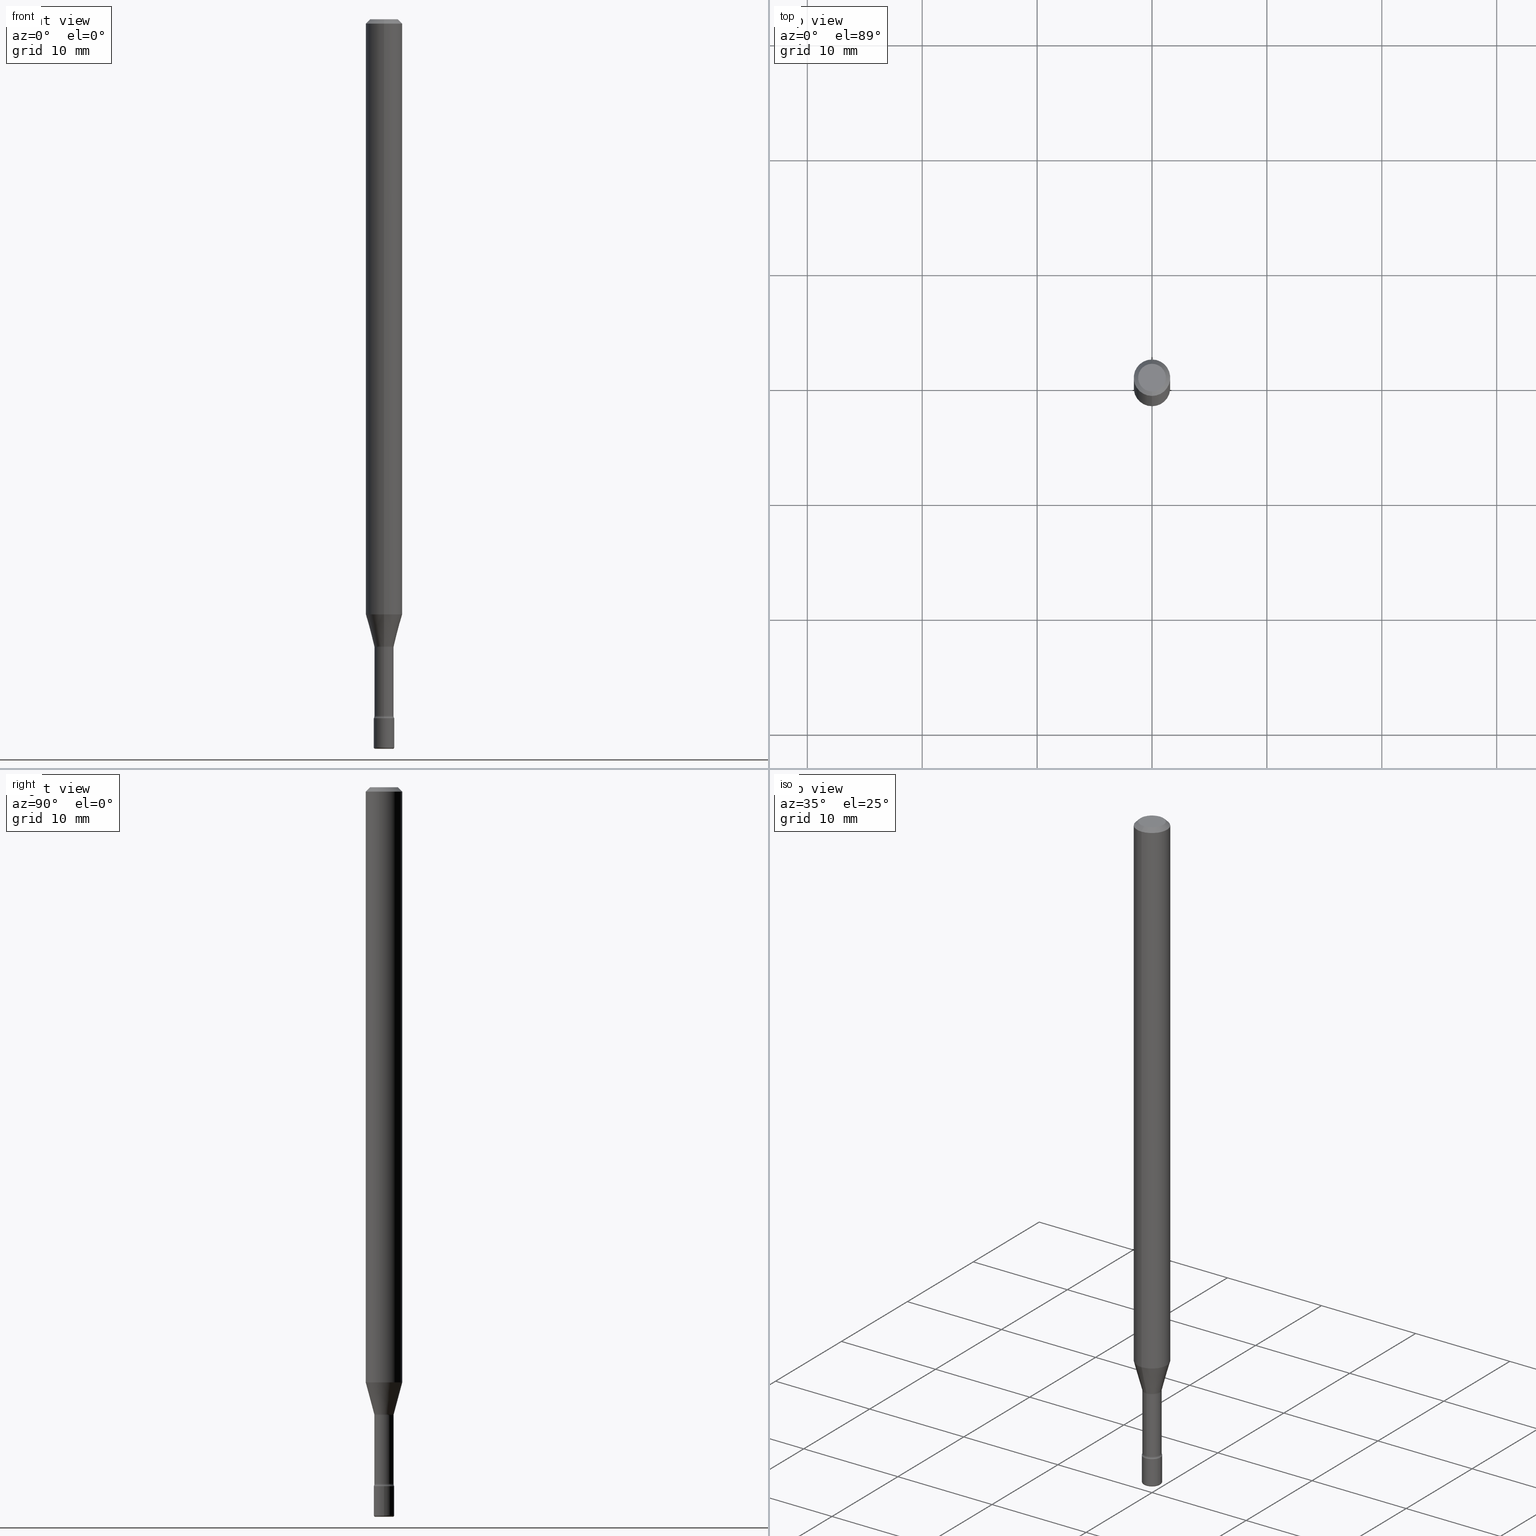
[diagram: canonical four-view strip — front | top / right | iso, engineering-drawing reading convention]
A machine part, canonical four-view strip (front | top / right | iso — engineering-drawing reading convention). The complete STEP part file that produces these views, byte-faithful:
ISO-10303-21;
HEADER;
FILE_DESCRIPTION (( 'STEP AP203' ),
    '1' );
FILE_NAME ('08830.STEP',
    '2024-03-06T20:04:25',
    ( '' ),
    ( '' ),
    'SwSTEP 2.0',
    'SolidWorks 2023',
    '' );
FILE_SCHEMA (( 'CONFIG_CONTROL_DESIGN' ));
ENDSEC;

DATA;
#1 = DIRECTION ( 'NONE',  ( 7.105427357601001859E-15, 1.000000000000000000, 0.000000000000000000 ) ) ;
#2 = EDGE_LOOP ( 'NONE', ( #335, #158, #188, #320 ) ) ;
#3 = EDGE_CURVE ( 'NONE', #153, #285, #262, .T. ) ;
#4 = CC_DESIGN_DATE_AND_TIME_ASSIGNMENT ( #332, #182, ( #105 ) ) ;
#5 = AXIS2_PLACEMENT_3D ( 'NONE', #485, #92, #227 ) ;
#6 = DIRECTION ( 'NONE',  ( 1.000000000000000000, -6.982962677686276966E-15, 0.000000000000000000 ) ) ;
#7 = FACE_OUTER_BOUND ( 'NONE', #101, .T. ) ;
#8 = DIRECTION ( 'NONE',  ( -6.982962677686265133E-15, -1.000000000000000000, 3.491554610375807088E-15 ) ) ;
#9 = AXIS2_PLACEMENT_3D ( 'NONE', #537, #133, #264 ) ;
#10 = CARTESIAN_POINT ( 'NONE',  ( -3.344839122611194574E-16, -0.04790000000000750602, -2.151974787463811101 ) ) ;
#11 = AXIS2_PLACEMENT_3D ( 'NONE', #390, #50, #386 ) ;
#12 = DIRECTION ( 'NONE',  ( -2.445417640947345566E-29, 3.491554610375806299E-15, 1.000000000000000000 ) ) ;
#13 = CARTESIAN_POINT ( 'NONE',  ( 2.412292587906125439E-16, 0.03289999999999167896, -2.387345589506695731 ) ) ;
#14 = ADVANCED_FACE ( 'NONE', ( #166 ), #79, .T. ) ;
#15 = ORIENTED_EDGE ( 'NONE', *, *, #314, .T. ) ;
#16 = APPROVAL ( #450, 'UNSPECIFIED' ) ;
#17 = ORIENTED_EDGE ( 'NONE', *, *, #566, .T. ) ;
#18 = EDGE_LOOP ( 'NONE', ( #75, #287 ) ) ;
#19 = DIRECTION ( 'NONE',  ( 6.982962677686265922E-15, 1.000000000000000000, -3.483106191921935554E-15 ) ) ;
#20 = AXIS2_PLACEMENT_3D ( 'NONE', #134, #399, #6 ) ;
#21 = ORIENTED_EDGE ( 'NONE', *, *, #126, .F. ) ;
#22 = PERSON_AND_ORGANIZATION_ROLE ( 'creator' ) ;
#23 = ORIENTED_EDGE ( 'NONE', *, *, #161, .F. ) ;
#24 = PERSON ( 'UNSPECIFIED', 'UNSPECIFIED', 'UNSPECIFIED', ('UNSPECIFIED'), ('UNSPECIFIED'), ('UNSPECIFIED') ) ;
#25 = CARTESIAN_POINT ( 'NONE',  ( 5.856897790813402508E-29, -8.362097806529333416E-15, -2.395000000000000018 ) ) ;
#26 = COORDINATED_UNIVERSAL_TIME_OFFSET ( 5, 0, .BEHIND. ) ;
#27 = ORIENTED_EDGE ( 'NONE', *, *, #346, .F. ) ;
#28 = CYLINDRICAL_SURFACE ( 'NONE', #86, 0.03500000000000000333 ) ;
#29 = DIRECTION ( 'NONE',  ( -6.982962677686266711E-15, -1.000000000000000000, 0.000000000000000000 ) ) ;
#30 = AXIS2_PLACEMENT_3D ( 'NONE', #302, #351, #475 ) ;
#31 = ADVANCED_FACE ( 'NONE', ( #7 ), #170, .T. ) ;
#32 = CARTESIAN_POINT ( 'NONE',  ( -4.364351673553912750E-16, -0.06250000000000005551, -0.01499999999999981036 ) ) ;
#33 = ORIENTED_EDGE ( 'NONE', *, *, #66, .T. ) ;
#34 = EDGE_CURVE ( 'NONE', #552, #489, #360, .T. ) ;
#35 = PRODUCT ( '08830', '08830', '', ( #554 ) ) ;
#36 = AXIS2_PLACEMENT_3D ( 'NONE', #10, #435, #398 ) ;
#37 = CIRCLE ( 'NONE', #136, 0.03500000000000000333 ) ;
#38 = ORIENTED_EDGE ( 'NONE', *, *, #160, .F. ) ;
#39 = ADVANCED_FACE ( 'NONE', ( #209 ), #69, .F. ) ;
#40 = DATE_AND_TIME ( #306, #241 ) ;
#41 = DIRECTION ( 'NONE',  ( -2.445417640947345847E-29, 3.491554610375806299E-15, 1.000000000000000000 ) ) ;
#42 = DIRECTION ( 'NONE',  ( 1.000000000000000000, -6.982962677686276966E-15, 0.000000000000000000 ) ) ;
#43 = AXIS2_PLACEMENT_3D ( 'NONE', #545, #462, #143 ) ;
#44 = ORIENTED_EDGE ( 'NONE', *, *, #88, .F. ) ;
#45 = CARTESIAN_POINT ( 'NONE',  ( 2.337685600650730011E-16, 0.03290000000000001257, 3.632012522098820413E-16 ) ) ;
#46 = DIRECTION ( 'NONE',  ( -2.445417640947345847E-29, 3.491554610375806299E-15, 1.000000000000000000 ) ) ;
#47 = EDGE_CURVE ( 'NONE', #201, #489, #355, .T. ) ;
#48 = APPROVAL_ROLE ( '' ) ;
#49 = DIRECTION ( 'NONE',  ( -2.445417640947345847E-29, 3.491554610375806299E-15, 1.000000000000000000 ) ) ;
#50 = DIRECTION ( 'NONE',  ( -2.445417640947345847E-29, 3.491554610375806299E-15, 1.000000000000000000 ) ) ;
#51 = APPROVAL_DATE_TIME ( #40, #146 ) ;
#52 = CARTESIAN_POINT ( 'NONE',  ( 5.838179168722291637E-29, -8.335372575132118350E-15, -2.387345589506696175 ) ) ;
#53 = CC_DESIGN_APPROVAL ( #146, ( #252 ) ) ;
#54 = VECTOR ( 'NONE', #59, 39.37007874015749564 ) ;
#55 = AXIS2_PLACEMENT_3D ( 'NONE', #212, #222, #322 ) ;
#56 = DIRECTION ( 'NONE',  ( -2.445468806185136597E-29, 3.491481338843145583E-15, 1.000000000000000000 ) ) ;
#57 = AXIS2_PLACEMENT_3D ( 'NONE', #229, #502, #106 ) ;
#58 = DIRECTION ( 'NONE',  ( -2.445417640947345847E-29, 3.491554610375806299E-15, 1.000000000000000000 ) ) ;
#59 = DIRECTION ( 'NONE',  ( -1.807323732225329350E-15, -0.2588190451025180194, 0.9659258262890689783 ) ) ;
#60 = AXIS2_PLACEMENT_3D ( 'NONE', #248, #156, #347 ) ;
#61 = DIRECTION ( 'NONE',  ( 1.000000000000000000, -6.982962677686265922E-15, 4.876176775795936353E-29 ) ) ;
#62 = SECURITY_CLASSIFICATION_LEVEL ( 'unclassified' ) ;
#63 = DIRECTION ( 'NONE',  ( -2.445468806185136597E-29, 3.491481338843145583E-15, 1.000000000000000000 ) ) ;
#64 = ORIENTED_EDGE ( 'NONE', *, *, #431, .T. ) ;
#65 = DIRECTION ( 'NONE',  ( -2.445417640947345847E-29, 3.491554610375806299E-15, 1.000000000000000000 ) ) ;
#66 = EDGE_CURVE ( 'NONE', #371, #208, #446, .T. ) ;
#67 = FACE_OUTER_BOUND ( 'NONE', #78, .T. ) ;
#68 = ORIENTED_EDGE ( 'NONE', *, *, #126, .T. ) ;
#69 = TOROIDAL_SURFACE ( 'NONE', #542, 0.04790000000000001895, 0.01500000000000000291 ) ;
#70 = FACE_OUTER_BOUND ( 'NONE', #140, .T. ) ;
#71 = AXIS2_PLACEMENT_3D ( 'NONE', #529, #132, #318 ) ;
#72 = APPROVAL_DATE_TIME ( #411, #16 ) ;
#73 = VERTEX_POINT ( 'NONE', #89 ) ;
#74 = APPROVAL_ROLE ( '' ) ;
#75 = ORIENTED_EDGE ( 'NONE', *, *, #164, .T. ) ;
#76 = EDGE_LOOP ( 'NONE', ( #524, #486, #298, #339 ) ) ;
#77 = COORDINATED_UNIVERSAL_TIME_OFFSET ( 5, 0, .BEHIND. ) ;
#78 = EDGE_LOOP ( 'NONE', ( #176, #442, #27, #23 ) ) ;
#79 = TOROIDAL_SURFACE ( 'NONE', #406, 0.03000000000000000583, 0.004999999999999767651 ) ;
#80 = DIRECTION ( 'NONE',  ( -2.445417640947345847E-29, 3.491554610375806299E-15, 1.000000000000000000 ) ) ;
#81 = EDGE_CURVE ( 'NONE', #128, #415, #312, .T. ) ;
#82 = LOCAL_TIME ( 15, 4, 25.00000000000000000, #340 ) ;
#83 = LINE ( 'NONE', #159, #258 ) ;
#84 = CARTESIAN_POINT ( 'NONE',  ( 0.03499999999999988537, -8.955649634132666717E-15, -2.495000000000000107 ) ) ;
#85 = CIRCLE ( 'NONE', #55, 0.03290000000000001951 ) ;
#86 = AXIS2_PLACEMENT_3D ( 'NONE', #149, #278, #192 ) ;
#87 = ORIENTED_EDGE ( 'NONE', *, *, #314, .F. ) ;
#88 = EDGE_CURVE ( 'NONE', #519, #128, #304, .T. ) ;
#89 = CARTESIAN_POINT ( 'NONE',  ( 2.486899575160935630E-16, 0.03499999999999163502, -2.395000000000000018 ) ) ;
#90 = FACE_OUTER_BOUND ( 'NONE', #76, .T. ) ;
#91 = CIRCLE ( 'NONE', #5, 0.03000000000000000583 ) ;
#92 = DIRECTION ( 'NONE',  ( -2.445468806185136597E-29, 3.491481338843145583E-15, 1.000000000000000000 ) ) ;
#93 = CARTESIAN_POINT ( 'NONE',  ( -0.03000000000000000583, -8.489048254638724265E-15, -2.499999999999999556 ) ) ;
#94 = VERTEX_POINT ( 'NONE', #95 ) ;
#95 = CARTESIAN_POINT ( 'NONE',  ( 3.840629472727447874E-16, 0.04750000000000000749, -1.929345507921888683E-16 ) ) ;
#96 = CLOSED_SHELL ( 'NONE', ( #268, #507, #39, #249, #425, #414, #363, #31, #484, #567, #202, #235, #555, #269 ) ) ;
#97 = TOROIDAL_SURFACE ( 'NONE', #492, 0.04789999999999999813, 0.01500000000000001853 ) ;
#98 = AXIS2_PLACEMENT_3D ( 'NONE', #461, #510, #336 ) ;
#99 = ORIENTED_EDGE ( 'NONE', *, *, #3, .T. ) ;
#100 = DIRECTION ( 'NONE',  ( 2.438088387897960049E-29, -3.491481338843145188E-15, -1.000000000000000000 ) ) ;
#101 = EDGE_LOOP ( 'NONE', ( #512, #504, #165, #551 ) ) ;
#102 = ORIENTED_EDGE ( 'NONE', *, *, #342, .T. ) ;
#103 = DIRECTION ( 'NONE',  ( -2.445417640947345847E-29, 3.491554610375806299E-15, 1.000000000000000000 ) ) ;
#104 = APPLICATION_PROTOCOL_DEFINITION ( 'international standard', 'config_control_design', 1994, #538 ) ;
#105 = PRODUCT_DEFINITION ( 'UNKNOWN', '', #325, #215 ) ;
#106 = DIRECTION ( 'NONE',  ( -6.982962677686265922E-15, -1.000000000000000000, 3.483106191921935554E-15 ) ) ;
#107 = DIRECTION ( 'NONE',  ( -6.982962677686266711E-15, -1.000000000000000000, 0.000000000000000000 ) ) ;
#108 = ORIENTED_EDGE ( 'NONE', *, *, #130, .F. ) ;
#109 = AXIS2_PLACEMENT_3D ( 'NONE', #237, #243, #29 ) ;
#110 = LENGTH_MEASURE_WITH_UNIT ( LENGTH_MEASURE( 0.02539999999999999897 ), #553 );
#111 = DIRECTION ( 'NONE',  ( -2.445417640947345847E-29, 3.491554610375806299E-15, 1.000000000000000000 ) ) ;
#112 = DIRECTION ( 'NONE',  ( -1.000000000000000000, 6.982962677686265922E-15, -4.883557194083112340E-29 ) ) ;
#113 =( NAMED_UNIT ( * ) PLANE_ANGLE_UNIT ( ) SI_UNIT ( $, .RADIAN. ) );
#114 = COORDINATED_UNIVERSAL_TIME_OFFSET ( 5, 0, .BEHIND. ) ;
#115 = CARTESIAN_POINT ( 'NONE',  ( -1.169113584055446105E-44, 1.669184350826100908E-30, 4.780733988912460139E-16 ) ) ;
#116 = ORIENTED_EDGE ( 'NONE', *, *, #429, .F. ) ;
#117 = EDGE_CURVE ( 'NONE', #196, #153, #560, .T. ) ;
#118 = APPROVAL_PERSON_ORGANIZATION ( #439, #146, #48 ) ;
#119 = AXIS2_PLACEMENT_3D ( 'NONE', #491, #141, #19 ) ;
#120 = DIRECTION ( 'NONE',  ( -2.445468806185136597E-29, 3.491481338843145583E-15, 1.000000000000000000 ) ) ;
#121 = AXIS2_PLACEMENT_3D ( 'NONE', #478, #120, #42 ) ;
#122 = LOCAL_TIME ( 15, 4, 25.00000000000000000, #114 ) ;
#123 = AXIS2_PLACEMENT_3D ( 'NONE', #500, #58, #321 ) ;
#124 = CARTESIAN_POINT ( 'NONE',  ( 0.03000000000000000583, -8.920734820744236646E-15, -2.495000000000000107 ) ) ;
#125 = ORIENTED_EDGE ( 'NONE', *, *, #342, .F. ) ;
#126 = EDGE_CURVE ( 'NONE', #453, #415, #173, .T. ) ;
#127 = APPROVAL_PERSON_ORGANIZATION ( #275, #572, #422 ) ;
#128 = VERTEX_POINT ( 'NONE', #13 ) ;
#129 = DIRECTION ( 'NONE',  ( -6.982962677686265922E-15, -1.000000000000000000, 3.491554610375805905E-15 ) ) ;
#130 = EDGE_CURVE ( 'NONE', #531, #201, #255, .T. ) ;
#131 = CIRCLE ( 'NONE', #71, 0.03341111260566397706 ) ;
#132 = DIRECTION ( 'NONE',  ( -2.445417640947345847E-29, 3.491554610375806299E-15, 1.000000000000000000 ) ) ;
#133 = DIRECTION ( 'NONE',  ( -2.445417640947345847E-29, 3.491554610375806299E-15, 1.000000000000000000 ) ) ;
#134 = CARTESIAN_POINT ( 'NONE',  ( 5.856897790813402508E-29, -8.362097806529333416E-15, -2.395000000000000018 ) ) ;
#135 = CC_DESIGN_SECURITY_CLASSIFICATION ( #252, ( #325 ) ) ;
#136 = AXIS2_PLACEMENT_3D ( 'NONE', #221, #225, #493 ) ;
#137 = ORIENTED_EDGE ( 'NONE', *, *, #272, .F. ) ;
#138 = PERSON_AND_ORGANIZATION ( #24, #247 ) ;
#139 = DIRECTION ( 'NONE',  ( -2.445417640947345847E-29, 3.491554610375806299E-15, 1.000000000000000000 ) ) ;
#140 = EDGE_LOOP ( 'NONE', ( #232, #324, #557, #404 ) ) ;
#141 = DIRECTION ( 'NONE',  ( 2.445417640947345847E-29, -3.491554610375806299E-15, -1.000000000000000000 ) ) ;
#142 = APPLICATION_PROTOCOL_DEFINITION ( 'international standard', 'config_control_design', 1994, #301 ) ;
#143 = DIRECTION ( 'NONE',  ( -1.000000000000000000, 7.105427357601061812E-15, 0.000000000000000000 ) ) ;
#144 = ORIENTED_EDGE ( 'NONE', *, *, #536, .F. ) ;
#145 = EDGE_LOOP ( 'NONE', ( #495, #444, #420, #547 ) ) ;
#146 = APPROVAL ( #530, 'UNSPECIFIED' ) ;
#147 = CARTESIAN_POINT ( 'NONE',  ( -3.344839122611139354E-16, -0.04790000000000835256, -2.387345589506695731 ) ) ;
#148 = ORIENTED_EDGE ( 'NONE', *, *, #47, .F. ) ;
#149 = CARTESIAN_POINT ( 'NONE',  ( 0.000000000000000000, 0.000000000000000000, 0.000000000000000000 ) ) ;
#150 = AXIS2_PLACEMENT_3D ( 'NONE', #224, #65, #373 ) ;
#151 = CARTESIAN_POINT ( 'NONE',  ( -2.333085523452721840E-16, -0.03341111260567147800, -2.148092501787273179 ) ) ;
#152 = DIRECTION ( 'NONE',  ( -2.445417640947345847E-29, 3.491554610375806299E-15, 1.000000000000000000 ) ) ;
#153 = VERTEX_POINT ( 'NONE', #177 ) ;
#154 = FACE_OUTER_BOUND ( 'NONE', #18, .T. ) ;
#155 = DIRECTION ( 'NONE',  ( -6.982962677686265922E-15, -1.000000000000000000, 0.000000000000000000 ) ) ;
#156 = DIRECTION ( 'NONE',  ( -2.445417640947345847E-29, 3.491554610375806299E-15, 1.000000000000000000 ) ) ;
#157 = CONICAL_SURFACE ( 'NONE', #432, 0.03341111260566397706, 0.2617993877991501850 ) ;
#158 = ORIENTED_EDGE ( 'NONE', *, *, #514, .T. ) ;
#159 = CARTESIAN_POINT ( 'NONE',  ( 2.374002335562250251E-16, 0.03341111260565647612, -2.148092501787273179 ) ) ;
#160 = EDGE_CURVE ( 'NONE', #128, #519, #85, .T. ) ;
#161 = EDGE_CURVE ( 'NONE', #371, #201, #535, .T. ) ;
#162 = DIRECTION ( 'NONE',  ( 1.000000000000000000, -6.982962677686075017E-15, 0.000000000000000000 ) ) ;
#163 = AXIS2_PLACEMENT_3D ( 'NONE', #499, #103, #271 ) ;
#164 = EDGE_CURVE ( 'NONE', #168, #469, #426, .T. ) ;
#165 = ORIENTED_EDGE ( 'NONE', *, *, #47, .T. ) ;
#166 = FACE_OUTER_BOUND ( 'NONE', #291, .T. ) ;
#167 = DIRECTION ( 'NONE',  ( 1.839019923739599526E-15, 0.2588190451025248473, 0.9659258262890670910 ) ) ;
#168 = VERTEX_POINT ( 'NONE', #169 ) ;
#169 = CARTESIAN_POINT ( 'NONE',  ( 0.03500000000000000333, -8.606501500248353382E-15, -2.395000000000000018 ) ) ;
#170 = CYLINDRICAL_SURFACE ( 'NONE', #393, 0.06250000000000000000 ) ;
#171 = EDGE_CURVE ( 'NONE', #285, #168, #359, .T. ) ;
#172 = DIRECTION ( 'NONE',  ( -2.445417640947345847E-29, 3.491554610375806299E-15, 1.000000000000000000 ) ) ;
#173 = CIRCLE ( 'NONE', #505, 0.01500000000000001853 ) ;
#174 = ORIENTED_EDGE ( 'NONE', *, *, #319, .T. ) ;
#175 = AXIS2_PLACEMENT_3D ( 'NONE', #474, #251, #1 ) ;
#176 = ORIENTED_EDGE ( 'NONE', *, *, #184, .T. ) ;
#177 = CARTESIAN_POINT ( 'NONE',  ( 0.03000000000000000583, -8.938192227438451682E-15, -2.499999999999999556 ) ) ;
#178 = DIRECTION ( 'NONE',  ( 1.000000000000000000, -7.105427357601001070E-15, 4.926316405859561380E-29 ) ) ;
#179 = DIRECTION ( 'NONE',  ( -6.982962677686266711E-15, -1.000000000000000000, 0.000000000000000000 ) ) ;
#180 = EDGE_CURVE ( 'NONE', #73, #498, #506, .T. ) ;
#181 = ORIENTED_EDGE ( 'NONE', *, *, #410, .F. ) ;
#182 = DATE_TIME_ROLE ( 'creation_date' ) ;
#183 = CLOSED_SHELL ( 'NONE', ( #226, #402, #382, #451, #14, #433 ) ) ;
#184 = EDGE_CURVE ( 'NONE', #371, #453, #131, .T. ) ;
#185 = CIRCLE ( 'NONE', #482, 0.03341111260566397706 ) ;
#186 = EDGE_LOOP ( 'NONE', ( #367, #368 ) ) ;
#187 = DIRECTION ( 'NONE',  ( 6.982962677686265922E-15, 1.000000000000000000, -3.491554610375806299E-15 ) ) ;
#188 = ORIENTED_EDGE ( 'NONE', *, *, #164, .F. ) ;
#189 = PRODUCT_RELATED_PRODUCT_CATEGORY ( 'detail', '', ( #35 ) ) ;
#190 = APPROVAL_DATE_TIME ( #328, #572 ) ;
#191 = PERSON_AND_ORGANIZATION_ROLE ( 'design_supplier' ) ;
#192 = DIRECTION ( 'NONE',  ( 1.000000000000000000, -6.982962677686265922E-15, 4.876176775795936353E-29 ) ) ;
#193 = DIRECTION ( 'NONE',  ( -6.982962677686265922E-15, -1.000000000000000000, 3.483106191921935554E-15 ) ) ;
#194 = DIRECTION ( 'NONE',  ( 2.445417640947345847E-29, -3.491554610375806299E-15, -1.000000000000000000 ) ) ;
#195 = DIRECTION ( 'NONE',  ( 1.000000000000000000, -6.982962677686239889E-15, 4.883557194083103933E-29 ) ) ;
#196 = VERTEX_POINT ( 'NONE', #93 ) ;
#197 = CC_DESIGN_PERSON_AND_ORGANIZATION_ASSIGNMENT ( #454, #549, ( #35 ) ) ;
#198 = ORIENTED_EDGE ( 'NONE', *, *, #294, .T. ) ;
#199 = CIRCLE ( 'NONE', #30, 0.03500000000000000333 ) ;
#200 = CIRCLE ( 'NONE', #121, 0.03500000000000000333 ) ;
#201 = VERTEX_POINT ( 'NONE', #267 ) ;
#202 = ADVANCED_FACE ( 'NONE', ( #443 ), #218, .F. ) ;
#203 = DIRECTION ( 'NONE',  ( -6.982962677686265133E-15, -1.000000000000000000, 3.491554610375806299E-15 ) ) ;
#204 = LINE ( 'NONE', #395, #523 ) ;
#205 = CIRCLE ( 'NONE', #231, 0.04750000000000000749 ) ;
#206 = CC_DESIGN_PERSON_AND_ORGANIZATION_ASSIGNMENT ( #138, #191, ( #325 ) ) ;
#207 = LOCAL_TIME ( 15, 4, 25.00000000000000000, #77 ) ;
#208 = VERTEX_POINT ( 'NONE', #556 ) ;
#209 = FACE_OUTER_BOUND ( 'NONE', #463, .T. ) ;
#210 =( GEOMETRIC_REPRESENTATION_CONTEXT ( 3 ) GLOBAL_UNCERTAINTY_ASSIGNED_CONTEXT ( ( #308 ) ) GLOBAL_UNIT_ASSIGNED_CONTEXT ( ( #236, #113, #565 ) ) REPRESENTATION_CONTEXT ( 'NONE', 'WORKASPACE' ) );
#211 = CYLINDRICAL_SURFACE ( 'NONE', #273, 0.03290000000000001257 ) ;
#212 = CARTESIAN_POINT ( 'NONE',  ( 5.838057019617513987E-29, -8.335547499602452744E-15, -2.387345589506695731 ) ) ;
#213 = SHAPE_DEFINITION_REPRESENTATION ( #517, #257 ) ;
#214 = CARTESIAN_POINT ( 'NONE',  ( 6.113672015462840371E-29, -8.728703347107863365E-15, -2.499999999999999556 ) ) ;
#215 = DESIGN_CONTEXT ( 'detailed design', #301, 'design' ) ;
#216 = EDGE_LOOP ( 'NONE', ( #125, #68, #17, #370 ) ) ;
#217 = DIRECTION ( 'NONE',  ( 1.000000000000000000, -6.982962677686239889E-15, 4.883557194083103933E-29 ) ) ;
#218 = PLANE ( 'NONE',  #244 ) ;
#219 = AXIS2_PLACEMENT_3D ( 'NONE', #544, #63, #61 ) ;
#220 = DIRECTION ( 'NONE',  ( 1.000000000000000000, -6.982962677686299054E-15, 0.000000000000000000 ) ) ;
#221 = CARTESIAN_POINT ( 'NONE',  ( 6.101444671431915719E-29, -8.711245940413648329E-15, -2.495000000000000107 ) ) ;
#222 = DIRECTION ( 'NONE',  ( -2.445417640947345847E-29, 3.491554610375806299E-15, 1.000000000000000000 ) ) ;
#223 = PLANE ( 'NONE',  #476 ) ;
#224 = CARTESIAN_POINT ( 'NONE',  ( 5.838179168722291637E-29, -8.335372575132118350E-15, -2.387345589506696175 ) ) ;
#225 = DIRECTION ( 'NONE',  ( -2.445468806185136597E-29, 3.491481338843145583E-15, 1.000000000000000000 ) ) ;
#226 = ADVANCED_FACE ( 'NONE', ( #283 ), #28, .T. ) ;
#227 = DIRECTION ( 'NONE',  ( 1.000000000000000000, -6.982962677686299054E-15, 0.000000000000000000 ) ) ;
#228 = VECTOR ( 'NONE', #260, 39.37007874015748143 ) ;
#229 = CARTESIAN_POINT ( 'NONE',  ( 3.668126461421025373E-31, -5.237331915563719680E-17, -0.01500000000000002720 ) ) ;
#230 = CARTESIAN_POINT ( 'NONE',  ( 5.262477108137919404E-29, -7.513737490581766135E-15, -2.151974787463811101 ) ) ;
#231 = AXIS2_PLACEMENT_3D ( 'NONE', #470, #80, #246 ) ;
#232 = ORIENTED_EDGE ( 'NONE', *, *, #254, .F. ) ;
#233 = PERSON_AND_ORGANIZATION ( #24, #247 ) ;
#234 = ORIENTED_EDGE ( 'NONE', *, *, #346, .T. ) ;
#235 = ADVANCED_FACE ( 'NONE', ( #564 ), #353, .F. ) ;
#236 =( CONVERSION_BASED_UNIT ( 'INCH', #110 ) LENGTH_UNIT ( ) NAMED_UNIT ( #473 ) );
#237 = CARTESIAN_POINT ( 'NONE',  ( 5.252983298257316177E-29, -7.500182278129053769E-15, -2.148092501787273179 ) ) ;
#238 = CALENDAR_DATE ( 2024, 6, 3 ) ;
#239 = CARTESIAN_POINT ( 'NONE',  ( 3.668126461421025373E-31, -5.237331915563719680E-17, -0.01500000000000002720 ) ) ;
#240 = EDGE_LOOP ( 'NONE', ( #234, #174, #369, #148 ) ) ;
#241 = LOCAL_TIME ( 15, 4, 25.00000000000000000, #265 ) ;
#242 = MANIFOLD_SOLID_BREP ( 'Body-Move/Copy2[1]', #183 ) ;
#243 = DIRECTION ( 'NONE',  ( -2.445417640947345847E-29, 3.491554610375806299E-15, 1.000000000000000000 ) ) ;
#244 = AXIS2_PLACEMENT_3D ( 'NONE', #407, #12, #279 ) ;
#245 = ORIENTED_EDGE ( 'NONE', *, *, #171, .T. ) ;
#246 = DIRECTION ( 'NONE',  ( -6.982962677686265133E-15, -1.000000000000000000, 3.491554610375805905E-15 ) ) ;
#247 = ORGANIZATION ( 'UNSPECIFIED', 'UNSPECIFIED', '' ) ;
#248 = CARTESIAN_POINT ( 'NONE',  ( -1.169113584055446105E-44, 1.669184350826100908E-30, 4.780733988912460139E-16 ) ) ;
#249 = ADVANCED_FACE ( 'NONE', ( #70 ), #270, .T. ) ;
#250 = CYLINDRICAL_SURFACE ( 'NONE', #60, 0.03290000000000001257 ) ;
#251 = DIRECTION ( 'NONE',  ( 1.000000000000000000, -7.105427357601001070E-15, 4.926316405859561380E-29 ) ) ;
#252 = SECURITY_CLASSIFICATION ( '', '', #62 ) ;
#253 = CARTESIAN_POINT ( 'NONE',  ( 4.440892098501128074E-16, 0.06249999999999995837, -0.01500000000000024578 ) ) ;
#254 = EDGE_CURVE ( 'NONE', #552, #94, #388, .T. ) ;
#255 = CIRCLE ( 'NONE', #9, 0.06250000000000000000 ) ;
#256 = CIRCLE ( 'NONE', #338, 0.03289999999999999869 ) ;
#257 = ADVANCED_BREP_SHAPE_REPRESENTATION ( '08830', ( #242, #423, #98 ), #210 ) ;
#258 = VECTOR ( 'NONE', #167, 39.37007874015748143 ) ;
#259 = CALENDAR_DATE ( 2024, 6, 3 ) ;
#260 = DIRECTION ( 'NONE',  ( -4.851104656540962697E-15, -0.7071067811865497932, -0.7071067811865452413 ) ) ;
#261 = CC_DESIGN_PERSON_AND_ORGANIZATION_ASSIGNMENT ( #233, #22, ( #105 ) ) ;
#262 = CIRCLE ( 'NONE', #490, 0.004999999999999767651 ) ;
#263 = CARTESIAN_POINT ( 'NONE',  ( -2.333085523452721840E-16, -0.03341111260567147800, -2.148092501787273179 ) ) ;
#264 = DIRECTION ( 'NONE',  ( -6.982962677686265922E-15, -1.000000000000000000, 4.370956789862821150E-15 ) ) ;
#265 = COORDINATED_UNIVERSAL_TIME_OFFSET ( 5, 0, .BEHIND. ) ;
#266 = ORIENTED_EDGE ( 'NONE', *, *, #357, .T. ) ;
#267 = CARTESIAN_POINT ( 'NONE',  ( -4.364351673553419219E-16, -0.06250000000000714706, -2.039531296095961732 ) ) ;
#268 = ADVANCED_FACE ( 'NONE', ( #518 ), #97, .F. ) ;
#269 = ADVANCED_FACE ( 'NONE', ( #297 ), #436, .F. ) ;
#270 = CONICAL_SURFACE ( 'NONE', #119, 0.06250000000000000000, 0.7853981633974480570 ) ;
#271 = DIRECTION ( 'NONE',  ( -6.982962677686265133E-15, -1.000000000000000000, 3.491554610375805905E-15 ) ) ;
#272 = EDGE_CURVE ( 'NONE', #401, #285, #199, .T. ) ;
#273 = AXIS2_PLACEMENT_3D ( 'NONE', #437, #46, #8 ) ;
#274 = FACE_OUTER_BOUND ( 'NONE', #458, .T. ) ;
#275 = PERSON_AND_ORGANIZATION ( #24, #247 ) ;
#276 = VERTEX_POINT ( 'NONE', #253 ) ;
#277 = EDGE_LOOP ( 'NONE', ( #303, #409, #509, #416 ) ) ;
#278 = DIRECTION ( 'NONE',  ( -2.445468806185136597E-29, 3.491481338843145583E-15, 1.000000000000000000 ) ) ;
#279 = DIRECTION ( 'NONE',  ( -6.982962677686265922E-15, -1.000000000000000000, 3.491554610375806299E-15 ) ) ;
#280 = DIRECTION ( 'NONE',  ( -1.000000000000000000, 6.982962677686265922E-15, -4.876176775795935793E-29 ) ) ;
#281 = ORIENTED_EDGE ( 'NONE', *, *, #389, .T. ) ;
#282 = ORIENTED_EDGE ( 'NONE', *, *, #294, .F. ) ;
#283 = FACE_OUTER_BOUND ( 'NONE', #2, .T. ) ;
#284 = AXIS2_PLACEMENT_3D ( 'NONE', #403, #172, #364 ) ;
#285 = VERTEX_POINT ( 'NONE', #84 ) ;
#286 = FACE_OUTER_BOUND ( 'NONE', #145, .T. ) ;
#287 = ORIENTED_EDGE ( 'NONE', *, *, #536, .T. ) ;
#288 = DIRECTION ( 'NONE',  ( -2.445417640947345847E-29, 3.491554610375806299E-15, 1.000000000000000000 ) ) ;
#289 = CALENDAR_DATE ( 2024, 6, 3 ) ;
#290 = DIRECTION ( 'NONE',  ( -6.982962677686266711E-15, -1.000000000000000000, 0.000000000000000000 ) ) ;
#291 = EDGE_LOOP ( 'NONE', ( #181, #479, #99, #137 ) ) ;
#292 = DIRECTION ( 'NONE',  ( 1.000000000000000000, -6.982962677686265922E-15, 4.876176775795935793E-29 ) ) ;
#293 = VECTOR ( 'NONE', #488, 39.37007874015748143 ) ;
#294 = EDGE_CURVE ( 'NONE', #128, #73, #378, .T. ) ;
#295 = CONICAL_SURFACE ( 'NONE', #381, 0.06250000000000000000, 0.7853981633974480570 ) ;
#296 = DIRECTION ( 'NONE',  ( 4.937700262164546464E-15, 0.7071067811865449082, -0.7071067811865501263 ) ) ;
#297 = FACE_OUTER_BOUND ( 'NONE', #392, .T. ) ;
#298 = ORIENTED_EDGE ( 'NONE', *, *, #477, .T. ) ;
#299 = DIRECTION ( 'NONE',  ( -2.445417640947345847E-29, 3.491554610375806299E-15, 1.000000000000000000 ) ) ;
#300 = ORIENTED_EDGE ( 'NONE', *, *, #3, .F. ) ;
#301 = APPLICATION_CONTEXT ( 'configuration controlled 3d designs of mechanical parts and assemblies' ) ;
#302 = CARTESIAN_POINT ( 'NONE',  ( 6.101444671431915719E-29, -8.711245940413648329E-15, -2.495000000000000107 ) ) ;
#303 = ORIENTED_EDGE ( 'NONE', *, *, #88, .T. ) ;
#304 = CIRCLE ( 'NONE', #430, 0.03290000000000001951 ) ;
#305 = CC_DESIGN_PERSON_AND_ORGANIZATION_ASSIGNMENT ( #496, #377, ( #252 ) ) ;
#306 = CALENDAR_DATE ( 2024, 6, 3 ) ;
#307 = DIRECTION ( 'NONE',  ( -2.445468806185136597E-29, 3.491481338843145583E-15, 1.000000000000000000 ) ) ;
#308 = UNCERTAINTY_MEASURE_WITH_UNIT (LENGTH_MEASURE( 1.000000000000000082E-05 ), #236, 'distance_accuracy_value', 'NONE');
#309 = CARTESIAN_POINT ( 'NONE',  ( -4.287811248607203282E-16, -0.06250000000000005551, -0.01499999999999981036 ) ) ;
#310 = DIRECTION ( 'NONE',  ( 6.982962677686265922E-15, 1.000000000000000000, -3.483106191921935554E-15 ) ) ;
#311 = EDGE_LOOP ( 'NONE', ( #384, #102, #563, #108 ) ) ;
#312 = LINE ( 'NONE', #45, #361 ) ;
#313 = PLANE ( 'NONE',  #354 ) ;
#314 = EDGE_CURVE ( 'NONE', #153, #196, #91, .T. ) ;
#315 = AXIS2_PLACEMENT_3D ( 'NONE', #147, #112, #290 ) ;
#316 = CARTESIAN_POINT ( 'NONE',  ( 0.03500000000000000333, -2.444036937190193250E-16, 1.706661871528577808E-30 ) ) ;
#317 = CARTESIAN_POINT ( 'NONE',  ( 3.316907271900976589E-16, 0.04750000000000000749, 5.964500205310315349E-17 ) ) ;
#318 = DIRECTION ( 'NONE',  ( -6.982962677686266711E-15, -1.000000000000000000, 0.000000000000000000 ) ) ;
#319 = EDGE_CURVE ( 'NONE', #531, #276, #417, .T. ) ;
#320 = ORIENTED_EDGE ( 'NONE', *, *, #171, .F. ) ;
#321 = DIRECTION ( 'NONE',  ( -6.982962677686265922E-15, -1.000000000000000000, 4.370956789862821150E-15 ) ) ;
#322 = DIRECTION ( 'NONE',  ( -6.982962677686265133E-15, -1.000000000000000000, 0.000000000000000000 ) ) ;
#323 = CIRCLE ( 'NONE', #528, 0.03500000000000000333 ) ;
#324 = ORIENTED_EDGE ( 'NONE', *, *, #34, .T. ) ;
#325 = PRODUCT_DEFINITION_FORMATION_WITH_SPECIFIED_SOURCE ( 'ANY', '', #35, .NOT_KNOWN. ) ;
#326 = APPROVAL_PERSON_ORGANIZATION ( #559, #16, #74 ) ;
#327 = DIRECTION ( 'NONE',  ( -2.445417640947345847E-29, 3.491554610375806299E-15, 1.000000000000000000 ) ) ;
#328 = DATE_AND_TIME ( #289, #391 ) ;
#329 = FACE_OUTER_BOUND ( 'NONE', #240, .T. ) ;
#330 = EDGE_LOOP ( 'NONE', ( #15, #460, #379, #300 ) ) ;
#331 = CARTESIAN_POINT ( 'NONE',  ( 5.252983298257316177E-29, -7.500182278129053769E-15, -2.148092501787273179 ) ) ;
#332 = DATE_AND_TIME ( #238, #207 ) ;
#333 = FACE_OUTER_BOUND ( 'NONE', #372, .T. ) ;
#334 = CARTESIAN_POINT ( 'NONE',  ( 5.252983298257316177E-29, -7.500182278129053769E-15, -2.148092501787273179 ) ) ;
#335 = ORIENTED_EDGE ( 'NONE', *, *, #349, .T. ) ;
#336 = DIRECTION ( 'NONE',  ( 1.000000000000000000, 0.000000000000000000, 0.000000000000000000 ) ) ;
#337 = LINE ( 'NONE', #508, #521 ) ;
#338 = AXIS2_PLACEMENT_3D ( 'NONE', #230, #503, #107 ) ;
#339 = ORIENTED_EDGE ( 'NONE', *, *, #566, .F. ) ;
#340 = COORDINATED_UNIVERSAL_TIME_OFFSET ( 5, 0, .BEHIND. ) ;
#341 = CARTESIAN_POINT ( 'NONE',  ( -0.03500000000000000333, 2.486899575160350887E-16, -1.721627281589217108E-30 ) ) ;
#342 = EDGE_CURVE ( 'NONE', #453, #371, #185, .T. ) ;
#343 = ORIENTED_EDGE ( 'NONE', *, *, #117, .F. ) ;
#344 = CARTESIAN_POINT ( 'NONE',  ( 5.856775250068893887E-29, -8.362273291850056610E-15, -2.395000000000000018 ) ) ;
#345 = CARTESIAN_POINT ( 'NONE',  ( -2.444036937189608014E-16, -0.03500000000000835776, -2.395000000000000018 ) ) ;
#346 = EDGE_CURVE ( 'NONE', #201, #531, #455, .T. ) ;
#347 = DIRECTION ( 'NONE',  ( -6.982962677686265133E-15, -1.000000000000000000, 3.491554610375807088E-15 ) ) ;
#348 = AXIS2_PLACEMENT_3D ( 'NONE', #558, #550, #195 ) ;
#349 = EDGE_CURVE ( 'NONE', #285, #401, #37, .T. ) ;
#350 = DIRECTION ( 'NONE',  ( -6.982962677686265133E-15, -1.000000000000000000, 3.491554610375806299E-15 ) ) ;
#351 = DIRECTION ( 'NONE',  ( -2.445468806185136597E-29, 3.491481338843145583E-15, 1.000000000000000000 ) ) ;
#352 = CARTESIAN_POINT ( 'NONE',  ( -1.169113584055446105E-44, 1.669184350826100908E-30, 4.780733988912460139E-16 ) ) ;
#353 = TOROIDAL_SURFACE ( 'NONE', #150, 0.04790000000000001895, 0.01500000000000000291 ) ;
#354 = AXIS2_PLACEMENT_3D ( 'NONE', #317, #483, #187 ) ;
#355 = LINE ( 'NONE', #440, #527 ) ;
#356 = CARTESIAN_POINT ( 'NONE',  ( -3.773273898774340269E-16, -0.04750000000000000749, 1.387631371935127597E-16 ) ) ;
#357 = EDGE_CURVE ( 'NONE', #498, #73, #323, .T. ) ;
#358 = CARTESIAN_POINT ( 'NONE',  ( 5.262477108137919404E-29, -7.513737490581766135E-15, -2.151974787463811101 ) ) ;
#359 = LINE ( 'NONE', #316, #427 ) ;
#360 = LINE ( 'NONE', #309, #228 ) ;
#361 = VECTOR ( 'NONE', #487, 39.37007874015748143 ) ;
#362 = AXIS2_PLACEMENT_3D ( 'NONE', #376, #419, #193 ) ;
#363 = ADVANCED_FACE ( 'NONE', ( #466 ), #394, .T. ) ;
#364 = DIRECTION ( 'NONE',  ( -6.982962677686265922E-15, -1.000000000000000000, 0.000000000000000000 ) ) ;
#365 = ORIENTED_EDGE ( 'NONE', *, *, #272, .T. ) ;
#366 = DIRECTION ( 'NONE',  ( 7.105427357601001859E-15, 1.000000000000000000, 0.000000000000000000 ) ) ;
#367 = ORIENTED_EDGE ( 'NONE', *, *, #357, .F. ) ;
#368 = ORIENTED_EDGE ( 'NONE', *, *, #180, .F. ) ;
#369 = ORIENTED_EDGE ( 'NONE', *, *, #457, .F. ) ;
#370 = ORIENTED_EDGE ( 'NONE', *, *, #66, .F. ) ;
#371 = VERTEX_POINT ( 'NONE', #151 ) ;
#372 = EDGE_LOOP ( 'NONE', ( #87, #343 ) ) ;
#373 = DIRECTION ( 'NONE',  ( -6.982962677686265133E-15, -1.000000000000000000, 3.491554610375806299E-15 ) ) ;
#374 = CARTESIAN_POINT ( 'NONE',  ( -0.03500000000000000333, -8.287981915955455587E-15, -2.395000000000000018 ) ) ;
#375 = CARTESIAN_POINT ( 'NONE',  ( 2.337685600651314262E-16, 0.03289999999999249081, -2.151974787463811101 ) ) ;
#376 = CARTESIAN_POINT ( 'NONE',  ( 3.668126461421025373E-31, -5.237331915563719680E-17, -0.01500000000000002720 ) ) ;
#377 = PERSON_AND_ORGANIZATION_ROLE ( 'classification_officer' ) ;
#378 = CIRCLE ( 'NONE', #175, 0.01500000000000000291 ) ;
#379 = ORIENTED_EDGE ( 'NONE', *, *, #349, .F. ) ;
#380 = DIRECTION ( 'NONE',  ( -2.438088387897960049E-29, 3.491481338843145188E-15, 1.000000000000000000 ) ) ;
#381 = AXIS2_PLACEMENT_3D ( 'NONE', #239, #194, #310 ) ;
#382 = ADVANCED_FACE ( 'NONE', ( #154 ), #513, .T. ) ;
#383 = DATE_AND_TIME ( #259, #122 ) ;
#384 = ORIENTED_EDGE ( 'NONE', *, *, #548, .F. ) ;
#385 = LINE ( 'NONE', #341, #459 ) ;
#386 = DIRECTION ( 'NONE',  ( -6.982962677686265133E-15, -1.000000000000000000, 3.491554610375806299E-15 ) ) ;
#387 = DIRECTION ( 'NONE',  ( -2.445468806185136877E-29, 3.491481338843145188E-15, 1.000000000000000000 ) ) ;
#388 = CIRCLE ( 'NONE', #163, 0.04750000000000000749 ) ;
#389 = EDGE_CURVE ( 'NONE', #94, #552, #205, .T. ) ;
#390 = CARTESIAN_POINT ( 'NONE',  ( 5.262587214439640065E-29, -7.513579812090841259E-15, -2.151974787463811101 ) ) ;
#391 = LOCAL_TIME ( 15, 4, 25.00000000000000000, #26 ) ;
#392 = EDGE_LOOP ( 'NONE', ( #21, #511, #33, #64 ) ) ;
#393 = AXIS2_PLACEMENT_3D ( 'NONE', #352, #526, #129 ) ;
#394 = CONICAL_SURFACE ( 'NONE', #109, 0.03341111260566397706, 0.2617993877991501850 ) ;
#395 = CARTESIAN_POINT ( 'NONE',  ( 4.364351673553919652E-16, 0.06249999999999995143, -0.01500000000000024578 ) ) ;
#396 = AXIS2_PLACEMENT_3D ( 'NONE', #358, #533, #539 ) ;
#397 = EDGE_LOOP ( 'NONE', ( #571, #365, #245, #144 ) ) ;
#398 = DIRECTION ( 'NONE',  ( -6.982962677686267499E-15, -1.000000000000000000, 0.000000000000000000 ) ) ;
#399 = DIRECTION ( 'NONE',  ( -2.445468806185136597E-29, 3.491481338843145583E-15, 1.000000000000000000 ) ) ;
#400 = CC_DESIGN_DATE_AND_TIME_ASSIGNMENT ( #383, #464, ( #252 ) ) ;
#401 = VERTEX_POINT ( 'NONE', #421 ) ;
#402 = ADVANCED_FACE ( 'NONE', ( #428 ), #568, .T. ) ;
#403 = CARTESIAN_POINT ( 'NONE',  ( 5.856775250068893887E-29, -8.362273291850056610E-15, -2.395000000000000018 ) ) ;
#404 = ORIENTED_EDGE ( 'NONE', *, *, #540, .F. ) ;
#405 = EDGE_CURVE ( 'NONE', #276, #489, #447, .T. ) ;
#406 = AXIS2_PLACEMENT_3D ( 'NONE', #532, #307, #217 ) ;
#407 = CARTESIAN_POINT ( 'NONE',  ( 2.444036937190778979E-16, 0.03499999999999164196, -2.395000000000000018 ) ) ;
#408 = CARTESIAN_POINT ( 'NONE',  ( 3.403499704291405336E-16, 0.04789999999999248331, -2.151974787463811545 ) ) ;
#409 = ORIENTED_EDGE ( 'NONE', *, *, #81, .T. ) ;
#410 = EDGE_CURVE ( 'NONE', #196, #401, #543, .T. ) ;
#411 = DATE_AND_TIME ( #494, #82 ) ;
#412 = AXIS2_PLACEMENT_3D ( 'NONE', #115, #152, #468 ) ;
#413 = CYLINDRICAL_SURFACE ( 'NONE', #219, 0.03500000000000000333 ) ;
#414 = ADVANCED_FACE ( 'NONE', ( #67 ), #157, .T. ) ;
#415 = VERTEX_POINT ( 'NONE', #375 ) ;
#416 = ORIENTED_EDGE ( 'NONE', *, *, #477, .F. ) ;
#417 = LINE ( 'NONE', #534, #293 ) ;
#418 = APPROVAL_STATUS ( 'not_yet_approved' ) ;
#419 = DIRECTION ( 'NONE',  ( -2.445417640947345847E-29, 3.491554610375806299E-15, 1.000000000000000000 ) ) ;
#420 = ORIENTED_EDGE ( 'NONE', *, *, #540, .T. ) ;
#421 = CARTESIAN_POINT ( 'NONE',  ( -0.03499999999999988537, -8.462555982897613832E-15, -2.495000000000000107 ) ) ;
#422 = APPROVAL_ROLE ( '' ) ;
#423 = MANIFOLD_SOLID_BREP ( 'Body-Move/Copy2[2]', #96 ) ;
#424 = ORIENTED_EDGE ( 'NONE', *, *, #180, .T. ) ;
#425 = ADVANCED_FACE ( 'NONE', ( #329 ), #562, .T. ) ;
#426 = CIRCLE ( 'NONE', #20, 0.03500000000000000333 ) ;
#427 = VECTOR ( 'NONE', #441, 39.37007874015748143 ) ;
#428 = FACE_OUTER_BOUND ( 'NONE', #330, .T. ) ;
#429 = EDGE_CURVE ( 'NONE', #519, #498, #515, .T. ) ;
#430 = AXIS2_PLACEMENT_3D ( 'NONE', #481, #49, #434 ) ;
#431 = EDGE_CURVE ( 'NONE', #208, #415, #256, .T. ) ;
#432 = AXIS2_PLACEMENT_3D ( 'NONE', #334, #139, #456 ) ;
#433 = ADVANCED_FACE ( 'NONE', ( #449 ), #413, .T. ) ;
#434 = DIRECTION ( 'NONE',  ( -6.982962677686265133E-15, -1.000000000000000000, 0.000000000000000000 ) ) ;
#435 = DIRECTION ( 'NONE',  ( -1.000000000000000000, 6.982962677686265922E-15, -4.883557194083112340E-29 ) ) ;
#436 = TOROIDAL_SURFACE ( 'NONE', #11, 0.04789999999999999813, 0.01500000000000001853 ) ;
#437 = CARTESIAN_POINT ( 'NONE',  ( -1.169113584055446105E-44, 1.669184350826100908E-30, 4.780733988912460139E-16 ) ) ;
#438 = CIRCLE ( 'NONE', #396, 0.03289999999999999869 ) ;
#439 = PERSON_AND_ORGANIZATION ( #24, #247 ) ;
#440 = CARTESIAN_POINT ( 'NONE',  ( -4.364351673553916201E-16, -0.06250000000000000000, 6.962955620397339816E-16 ) ) ;
#441 = DIRECTION ( 'NONE',  ( -2.445468806185136877E-29, 3.491481338843145188E-15, 1.000000000000000000 ) ) ;
#442 = ORIENTED_EDGE ( 'NONE', *, *, #548, .T. ) ;
#443 = FACE_OUTER_BOUND ( 'NONE', #186, .T. ) ;
#444 = ORIENTED_EDGE ( 'NONE', *, *, #389, .F. ) ;
#445 = DIRECTION ( 'NONE',  ( -6.982962677686266711E-15, -1.000000000000000000, 3.491481338843145583E-15 ) ) ;
#446 = CIRCLE ( 'NONE', #36, 0.01500000000000001853 ) ;
#447 = CIRCLE ( 'NONE', #362, 0.06250000000000000000 ) ;
#448 = PERSON_AND_ORGANIZATION_ROLE ( 'creator' ) ;
#449 = FACE_OUTER_BOUND ( 'NONE', #397, .T. ) ;
#450 = APPROVAL_STATUS ( 'not_yet_approved' ) ;
#451 = ADVANCED_FACE ( 'NONE', ( #333 ), #223, .T. ) ;
#452 = CARTESIAN_POINT ( 'NONE',  ( 3.407447217031688177E-16, 0.03341111260565647612, -2.148092501787273179 ) ) ;
#453 = VERTEX_POINT ( 'NONE', #452 ) ;
#454 = PERSON_AND_ORGANIZATION ( #24, #247 ) ;
#455 = CIRCLE ( 'NONE', #123, 0.06250000000000000000 ) ;
#456 = DIRECTION ( 'NONE',  ( -6.982962677686266711E-15, -1.000000000000000000, 0.000000000000000000 ) ) ;
#457 = EDGE_CURVE ( 'NONE', #489, #276, #561, .T. ) ;
#458 = EDGE_LOOP ( 'NONE', ( #281, #522 ) ) ;
#459 = VECTOR ( 'NONE', #387, 39.37007874015748143 ) ;
#460 = ORIENTED_EDGE ( 'NONE', *, *, #410, .T. ) ;
#461 = CARTESIAN_POINT ( 'NONE',  ( 0.000000000000000000, 0.000000000000000000, 0.000000000000000000 ) ) ;
#462 = DIRECTION ( 'NONE',  ( 7.105427357601001859E-15, 1.000000000000000000, -3.491481338843145583E-15 ) ) ;
#463 = EDGE_LOOP ( 'NONE', ( #38, #198, #424, #116 ) ) ;
#464 = DATE_TIME_ROLE ( 'classification_date' ) ;
#465 = EDGE_LOOP ( 'NONE', ( #282, #44, #541, #266 ) ) ;
#466 = FACE_OUTER_BOUND ( 'NONE', #311, .T. ) ;
#467 = PERSON_AND_ORGANIZATION ( #24, #247 ) ;
#468 = DIRECTION ( 'NONE',  ( -6.982962677686265922E-15, -1.000000000000000000, 3.491554610375805905E-15 ) ) ;
#469 = VERTEX_POINT ( 'NONE', #374 ) ;
#470 = CARTESIAN_POINT ( 'NONE',  ( 6.621140448549307300E-46, -9.460625362117724032E-32, -2.708570679933806043E-17 ) ) ;
#471 = AXIS2_PLACEMENT_3D ( 'NONE', #25, #380, #292 ) ;
#472 = FACE_OUTER_BOUND ( 'NONE', #277, .T. ) ;
#473 = DIMENSIONAL_EXPONENTS ( 1.000000000000000000, 0.000000000000000000, 0.000000000000000000, 0.000000000000000000, 0.000000000000000000, 0.000000000000000000, 0.000000000000000000 ) ;
#474 = CARTESIAN_POINT ( 'NONE',  ( 3.403499704291464501E-16, 0.04789999999999168534, -2.387345589506696619 ) ) ;
#475 = DIRECTION ( 'NONE',  ( 1.000000000000000000, -6.982962677686248567E-15, 0.000000000000000000 ) ) ;
#476 = AXIS2_PLACEMENT_3D ( 'NONE', #497, #100, #280 ) ;
#477 = EDGE_CURVE ( 'NONE', #519, #208, #337, .T. ) ;
#478 = CARTESIAN_POINT ( 'NONE',  ( 5.856897790813402508E-29, -8.362097806529333416E-15, -2.395000000000000018 ) ) ;
#479 = ORIENTED_EDGE ( 'NONE', *, *, #117, .T. ) ;
#480 = CC_DESIGN_PERSON_AND_ORGANIZATION_ASSIGNMENT ( #467, #448, ( #325 ) ) ;
#481 = CARTESIAN_POINT ( 'NONE',  ( 5.838057019617513987E-29, -8.335547499602452744E-15, -2.387345589506695731 ) ) ;
#482 = AXIS2_PLACEMENT_3D ( 'NONE', #331, #327, #179 ) ;
#483 = DIRECTION ( 'NONE',  ( 2.445417640947345566E-29, -3.491554610375806299E-15, -1.000000000000000000 ) ) ;
#484 = ADVANCED_FACE ( 'NONE', ( #286 ), #295, .T. ) ;
#485 = CARTESIAN_POINT ( 'NONE',  ( 6.113672015462840371E-29, -8.728703347107863365E-15, -2.499999999999999556 ) ) ;
#486 = ORIENTED_EDGE ( 'NONE', *, *, #160, .T. ) ;
#487 = DIRECTION ( 'NONE',  ( -2.445417640947345847E-29, 3.491554610375806299E-15, 1.000000000000000000 ) ) ;
#488 = DIRECTION ( 'NONE',  ( -2.445417640947345847E-29, 3.491554610375806299E-15, 1.000000000000000000 ) ) ;
#489 = VERTEX_POINT ( 'NONE', #32 ) ;
#490 = AXIS2_PLACEMENT_3D ( 'NONE', #124, #445, #162 ) ;
#491 = CARTESIAN_POINT ( 'NONE',  ( 3.668126461421025373E-31, -5.237331915563719680E-17, -0.01500000000000002720 ) ) ;
#492 = AXIS2_PLACEMENT_3D ( 'NONE', #570, #299, #350 ) ;
#493 = DIRECTION ( 'NONE',  ( 1.000000000000000000, -6.982962677686248567E-15, 0.000000000000000000 ) ) ;
#494 = CALENDAR_DATE ( 2024, 6, 3 ) ;
#495 = ORIENTED_EDGE ( 'NONE', *, *, #34, .F. ) ;
#496 = PERSON_AND_ORGANIZATION ( #24, #247 ) ;
#497 = CARTESIAN_POINT ( 'NONE',  ( 2.094888803306491578E-16, 0.02999999999999127670, -2.500000000000000000 ) ) ;
#498 = VERTEX_POINT ( 'NONE', #345 ) ;
#499 = CARTESIAN_POINT ( 'NONE',  ( 6.621140448549307300E-46, -9.460625362117724032E-32, -2.708570679933806043E-17 ) ) ;
#500 = CARTESIAN_POINT ( 'NONE',  ( 4.987505810737270256E-29, -7.121134899889598635E-15, -2.039531296095961732 ) ) ;
#501 = CC_DESIGN_APPROVAL ( #572, ( #325 ) ) ;
#502 = DIRECTION ( 'NONE',  ( -2.445417640947345847E-29, 3.491554610375806299E-15, 1.000000000000000000 ) ) ;
#503 = DIRECTION ( 'NONE',  ( -2.445417640947345847E-29, 3.491554610375806299E-15, 1.000000000000000000 ) ) ;
#504 = ORIENTED_EDGE ( 'NONE', *, *, #130, .T. ) ;
#505 = AXIS2_PLACEMENT_3D ( 'NONE', #408, #178, #366 ) ;
#506 = CIRCLE ( 'NONE', #284, 0.03500000000000000333 ) ;
#507 = ADVANCED_FACE ( 'NONE', ( #472 ), #250, .T. ) ;
#508 = CARTESIAN_POINT ( 'NONE',  ( -2.297394720958782020E-16, -0.03290000000000001257, 5.929455455726101838E-16 ) ) ;
#509 = ORIENTED_EDGE ( 'NONE', *, *, #431, .F. ) ;
#510 = DIRECTION ( 'NONE',  ( 0.000000000000000000, 0.000000000000000000, 1.000000000000000000 ) ) ;
#511 = ORIENTED_EDGE ( 'NONE', *, *, #184, .F. ) ;
#512 = ORIENTED_EDGE ( 'NONE', *, *, #319, .F. ) ;
#513 = PLANE ( 'NONE',  #471 ) ;
#514 = EDGE_CURVE ( 'NONE', #401, #469, #385, .T. ) ;
#515 = CIRCLE ( 'NONE', #315, 0.01500000000000000291 ) ;
#516 = CARTESIAN_POINT ( 'NONE',  ( 4.440892098501122158E-16, 0.06249999999999284600, -2.039531296095962176 ) ) ;
#517 = PRODUCT_DEFINITION_SHAPE ( 'NONE', 'NONE',  #105 ) ;
#518 = FACE_OUTER_BOUND ( 'NONE', #216, .T. ) ;
#519 = VERTEX_POINT ( 'NONE', #569 ) ;
#520 = AXIS2_PLACEMENT_3D ( 'NONE', #214, #56, #220 ) ;
#521 = VECTOR ( 'NONE', #111, 39.37007874015748143 ) ;
#522 = ORIENTED_EDGE ( 'NONE', *, *, #254, .T. ) ;
#523 = VECTOR ( 'NONE', #296, 39.37007874015748143 ) ;
#524 = ORIENTED_EDGE ( 'NONE', *, *, #81, .F. ) ;
#525 = DIRECTION ( 'NONE',  ( -2.445417640947345847E-29, 3.491554610375806299E-15, 1.000000000000000000 ) ) ;
#526 = DIRECTION ( 'NONE',  ( -2.445417640947345847E-29, 3.491554610375806299E-15, 1.000000000000000000 ) ) ;
#527 = VECTOR ( 'NONE', #525, 39.37007874015748143 ) ;
#528 = AXIS2_PLACEMENT_3D ( 'NONE', #344, #288, #155 ) ;
#529 = CARTESIAN_POINT ( 'NONE',  ( 5.252983298257316177E-29, -7.500182278129053769E-15, -2.148092501787273179 ) ) ;
#530 = APPROVAL_STATUS ( 'not_yet_approved' ) ;
#531 = VERTEX_POINT ( 'NONE', #516 ) ;
#532 = CARTESIAN_POINT ( 'NONE',  ( 6.101444671431915719E-29, -8.711245940413648329E-15, -2.495000000000000107 ) ) ;
#533 = DIRECTION ( 'NONE',  ( -2.445417640947345847E-29, 3.491554610375806299E-15, 1.000000000000000000 ) ) ;
#534 = CARTESIAN_POINT ( 'NONE',  ( 4.440892098500625669E-16, 0.06250000000000000000, 2.598512357427581449E-16 ) ) ;
#535 = LINE ( 'NONE', #263, #54 ) ;
#536 = EDGE_CURVE ( 'NONE', #469, #168, #200, .T. ) ;
#537 = CARTESIAN_POINT ( 'NONE',  ( 4.987505810737270256E-29, -7.121134899889598635E-15, -2.039531296095961732 ) ) ;
#538 = APPLICATION_CONTEXT ( 'configuration controlled 3d designs of mechanical parts and assemblies' ) ;
#539 = DIRECTION ( 'NONE',  ( -6.982962677686266711E-15, -1.000000000000000000, 0.000000000000000000 ) ) ;
#540 = EDGE_CURVE ( 'NONE', #94, #276, #204, .T. ) ;
#541 = ORIENTED_EDGE ( 'NONE', *, *, #429, .T. ) ;
#542 = AXIS2_PLACEMENT_3D ( 'NONE', #52, #41, #203 ) ;
#543 = CIRCLE ( 'NONE', #43, 0.004999999999999767651 ) ;
#544 = CARTESIAN_POINT ( 'NONE',  ( 0.000000000000000000, 0.000000000000000000, 0.000000000000000000 ) ) ;
#545 = CARTESIAN_POINT ( 'NONE',  ( -0.03000000000000000583, -8.498083119685618084E-15, -2.495000000000000107 ) ) ;
#546 = CC_DESIGN_APPROVAL ( #16, ( #105 ) ) ;
#547 = ORIENTED_EDGE ( 'NONE', *, *, #405, .T. ) ;
#548 = EDGE_CURVE ( 'NONE', #453, #531, #83, .T. ) ;
#549 = PERSON_AND_ORGANIZATION_ROLE ( 'design_owner' ) ;
#550 = DIRECTION ( 'NONE',  ( -2.445468806185136597E-29, 3.491481338843145583E-15, 1.000000000000000000 ) ) ;
#551 = ORIENTED_EDGE ( 'NONE', *, *, #405, .F. ) ;
#552 = VERTEX_POINT ( 'NONE', #356 ) ;
#553 =( LENGTH_UNIT ( ) NAMED_UNIT ( * ) SI_UNIT ( $, .METRE. ) );
#554 = MECHANICAL_CONTEXT ( 'NONE', #538, 'mechanical' ) ;
#555 = ADVANCED_FACE ( 'NONE', ( #90 ), #211, .T. ) ;
#556 = CARTESIAN_POINT ( 'NONE',  ( -2.297394720958255455E-16, -0.03290000000000751351, -2.151974787463811101 ) ) ;
#557 = ORIENTED_EDGE ( 'NONE', *, *, #457, .T. ) ;
#558 = CARTESIAN_POINT ( 'NONE',  ( 6.101444671431915719E-29, -8.711245940413648329E-15, -2.495000000000000107 ) ) ;
#559 = PERSON_AND_ORGANIZATION ( #24, #247 ) ;
#560 = CIRCLE ( 'NONE', #520, 0.03000000000000000583 ) ;
#561 = CIRCLE ( 'NONE', #57, 0.06250000000000000000 ) ;
#562 = CYLINDRICAL_SURFACE ( 'NONE', #412, 0.06250000000000000000 ) ;
#563 = ORIENTED_EDGE ( 'NONE', *, *, #161, .T. ) ;
#564 = FACE_OUTER_BOUND ( 'NONE', #465, .T. ) ;
#565 =( NAMED_UNIT ( * ) SI_UNIT ( $, .STERADIAN. ) SOLID_ANGLE_UNIT ( ) );
#566 = EDGE_CURVE ( 'NONE', #415, #208, #438, .T. ) ;
#567 = ADVANCED_FACE ( 'NONE', ( #274 ), #313, .F. ) ;
#568 = TOROIDAL_SURFACE ( 'NONE', #348, 0.03000000000000000583, 0.004999999999999767651 ) ;
#569 = CARTESIAN_POINT ( 'NONE',  ( -2.297394720958198756E-16, -0.03290000000000835312, -2.387345589506695731 ) ) ;
#570 = CARTESIAN_POINT ( 'NONE',  ( 5.262587214439640065E-29, -7.513579812090841259E-15, -2.151974787463811101 ) ) ;
#571 = ORIENTED_EDGE ( 'NONE', *, *, #514, .F. ) ;
#572 = APPROVAL ( #418, 'UNSPECIFIED' ) ;
ENDSEC;
END-ISO-10303-21;
